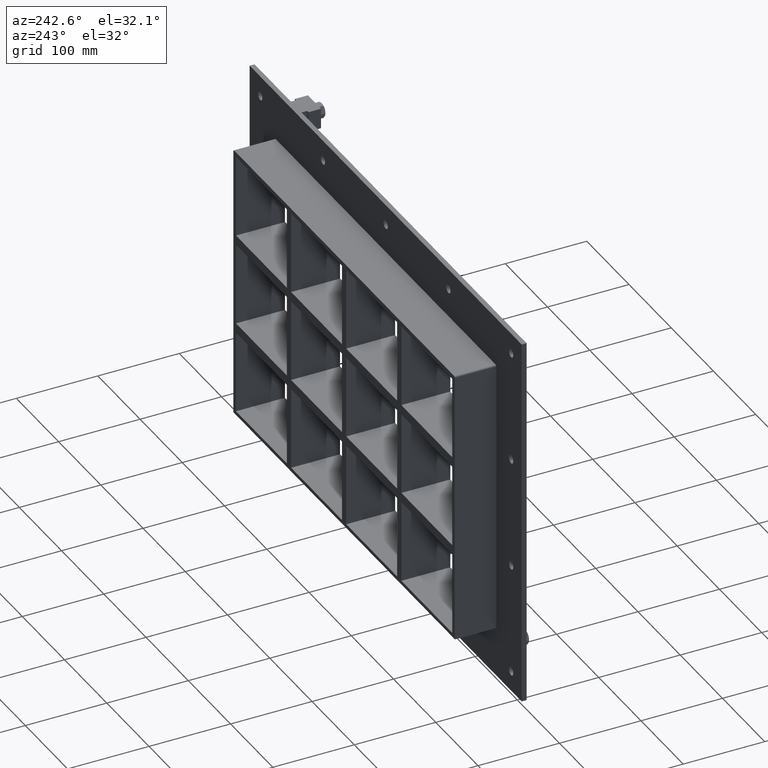
[diagram: clean part render]
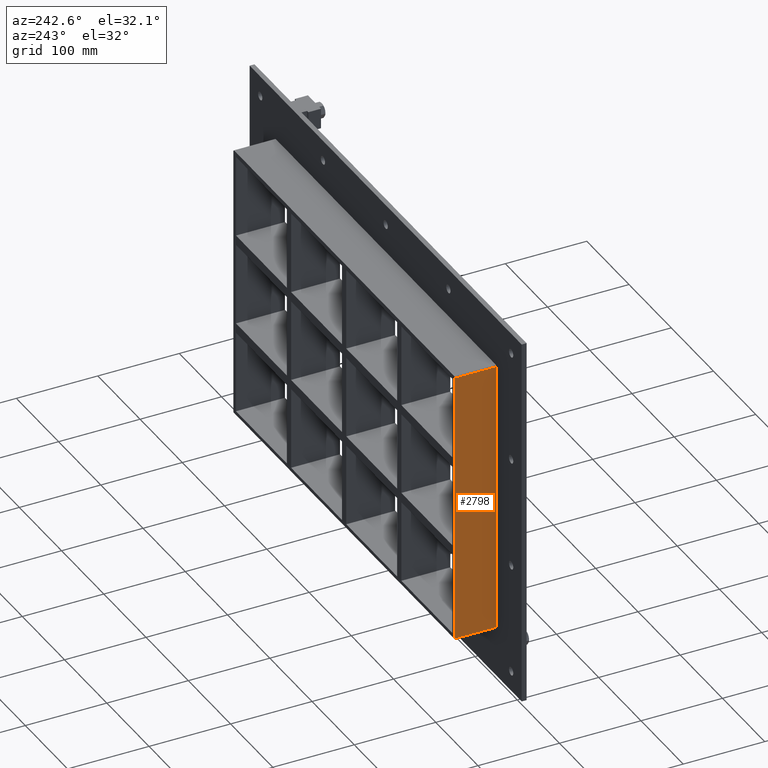
[diagram: same view with one face highlighted and labeled with its STEP entity id]
A machine part, auxiliary view. The second image highlights one B-rep face of the part: STEP entity #2798.
In plain terms, the highlighted planar face has unit normal (-1, 0, 0).
Its self-contained STEP definition (entity closure, byte-faithful):
#1095=CARTESIAN_POINT('',(-262.0,57.0,-167.50000000000003));
#1096=VERTEX_POINT('',#1095);
#1105=CARTESIAN_POINT('',(-262.0,57.0,167.5));
#1106=VERTEX_POINT('',#1105);
#1107=CARTESIAN_POINT('',(-262.0,57.0,-167.50000000000003));
#1108=DIRECTION('',(0.0,0.0,1.0));
#1109=VECTOR('',#1108,335.0);
#1110=LINE('',#1107,#1109);
#1111=EDGE_CURVE('',#1096,#1106,#1110,.T.);
#2295=CARTESIAN_POINT('',(-262.0,6.000000000000001,167.5));
#2296=VERTEX_POINT('',#2295);
#2306=CARTESIAN_POINT('',(-262.0,6.000000000000001,-167.5));
#2307=VERTEX_POINT('',#2306);
#2308=CARTESIAN_POINT('',(-262.0,6.000000000000001,-167.5));
#2309=DIRECTION('',(0.0,0.0,1.0));
#2310=VECTOR('',#2309,335.0);
#2311=LINE('',#2308,#2310);
#2312=EDGE_CURVE('',#2307,#2296,#2311,.T.);
#2731=CARTESIAN_POINT('',(-262.0,6.000000000000001,-167.5));
#2732=DIRECTION('',(0.0,1.0,0.0));
#2733=VECTOR('',#2732,51.0);
#2734=LINE('',#2731,#2733);
#2735=EDGE_CURVE('',#2307,#1096,#2734,.T.);
#2782=CARTESIAN_POINT('',(-262.0,0.0,-169.50000000000003));
#2783=DIRECTION('',(-1.0,0.0,0.0));
#2784=DIRECTION('',(0.0,0.0,1.0));
#2785=AXIS2_PLACEMENT_3D('',#2782,#2783,#2784);
#2786=PLANE('',#2785);
#2787=ORIENTED_EDGE('',*,*,#2312,.T.);
#2788=CARTESIAN_POINT('',(-262.0,57.0,167.5));
#2789=DIRECTION('',(0.0,-1.0,0.0));
#2790=VECTOR('',#2789,51.0);
#2791=LINE('',#2788,#2790);
#2792=EDGE_CURVE('',#1106,#2296,#2791,.T.);
#2793=ORIENTED_EDGE('',*,*,#2792,.F.);
#2794=ORIENTED_EDGE('',*,*,#1111,.F.);
#2795=ORIENTED_EDGE('',*,*,#2735,.F.);
#2796=EDGE_LOOP('',(#2787,#2793,#2794,#2795));
#2797=FACE_OUTER_BOUND('',#2796,.T.);
#2798=ADVANCED_FACE('',(#2797),#2786,.T.);